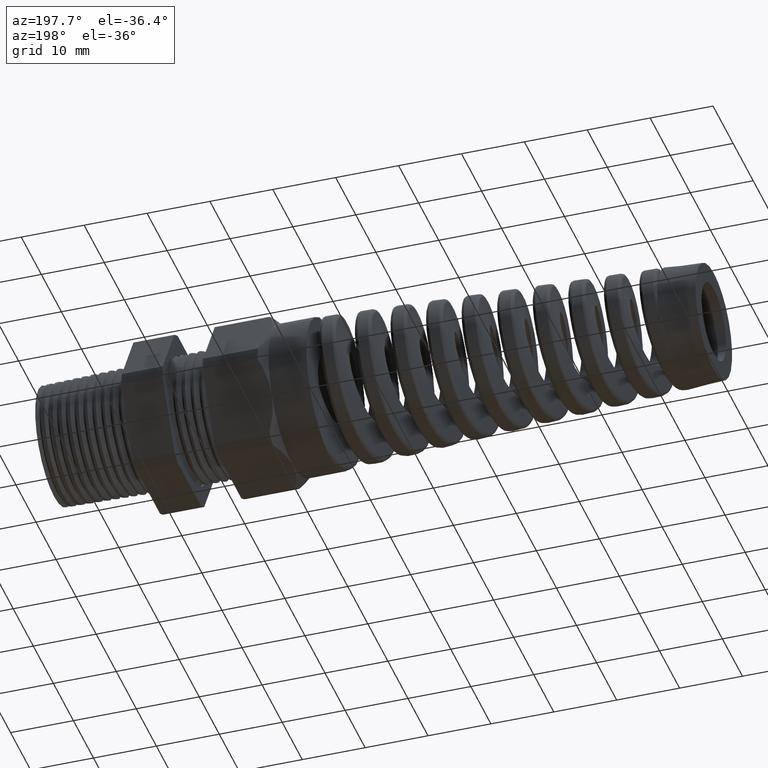
[diagram: clean part render]
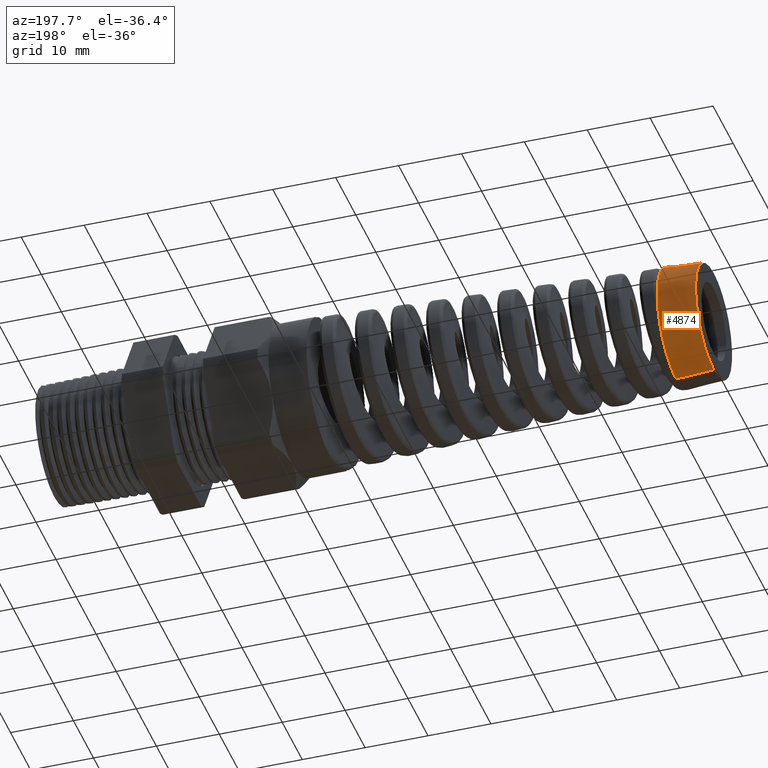
[diagram: same view with one face highlighted and labeled with its STEP entity id]
A machine part, auxiliary view. The second image highlights one B-rep face of the part: STEP entity #4874.
In plain terms, the highlighted conical surface has half-angle 3.5 deg.
Its self-contained STEP definition (entity closure, byte-faithful):
#111 = CARTESIAN_POINT ( 'NONE',  ( -3.613780000000000200, 0.0000000000000000000, 0.3720344495207377800 ) ) ;
#117 = DIRECTION ( 'NONE',  ( 0.9981347984218669200, -7.476289853398327700E-018, -0.06104853953485701200 ) ) ;
#118 = VECTOR ( 'NONE', #117, 39.37007874015748900 ) ;
#119 = CARTESIAN_POINT ( 'NONE',  ( -3.613780000000000200, -4.556107977781191300E-017, -0.3720344495207377800 ) ) ;
#120 = LINE ( 'NONE', #119, #118 ) ;
#121 = CARTESIAN_POINT ( 'NONE',  ( -3.850000472440945600, 0.0000000000000000000, 0.3575865864930643000 ) ) ;
#497 = DIRECTION ( 'NONE',  ( 0.9981347984218669200, 0.0000000000000000000, 0.06104853953485701200 ) ) ;
#498 = VECTOR ( 'NONE', #497, 39.37007874015748900 ) ;
#499 = CARTESIAN_POINT ( 'NONE',  ( -3.613780000000000200, 0.0000000000000000000, 0.3720344495207377800 ) ) ;
#500 = LINE ( 'NONE', #499, #498 ) ;
#2111 = CARTESIAN_POINT ( 'NONE',  ( -3.613780000000000200, 0.0000000000000000000, 0.0000000000000000000 ) ) ;
#2156 = DIRECTION ( 'NONE',  ( 0.0000000000000000000, 0.0000000000000000000, 1.000000000000000000 ) ) ;
#2157 = DIRECTION ( 'NONE',  ( -1.000000000000000000, 0.0000000000000000000, 0.0000000000000000000 ) ) ;
#2158 = AXIS2_PLACEMENT_3D ( 'NONE', #2111, #2157, #2156 ) ;
#2159 = CIRCLE ( 'NONE', #2158, 0.3720344495207377800 ) ;
#4874 = ADVANCED_FACE ( 'NONE', ( #16710 ), #16770, .T. ) ;
#4885 = EDGE_CURVE ( 'NONE', #5179, #5252, #16748, .T. ) ;
#4930 = EDGE_LOOP ( 'NONE', ( #4931, #4932, #4933, #4934, #4936 ) ) ;
#4931 = ORIENTED_EDGE ( 'NONE', *, *, #5181, .F. ) ;
#4932 = ORIENTED_EDGE ( 'NONE', *, *, #4885, .F. ) ;
#4933 = ORIENTED_EDGE ( 'NONE', *, *, #5197, .T. ) ;
#4934 = ORIENTED_EDGE ( 'NONE', *, *, #4935, .T. ) ;
#4935 = EDGE_CURVE ( 'NONE', #5185, #10887, #2159, .T. ) ;
#4936 = ORIENTED_EDGE ( 'NONE', *, *, #10900, .F. ) ;
#5179 = VERTEX_POINT ( 'NONE', #121 ) ;
#5181 = EDGE_CURVE ( 'NONE', #5252, #10898, #120, .T. ) ;
#5185 = VERTEX_POINT ( 'NONE', #111 ) ;
#5197 = EDGE_CURVE ( 'NONE', #5179, #5185, #500, .T. ) ;
#5252 = VERTEX_POINT ( 'NONE', #7784 ) ;
#7784 = CARTESIAN_POINT ( 'NONE',  ( -3.850000472440945600, -4.467640331724391700E-017, -0.3575865864930643000 ) ) ;
#10887 = VERTEX_POINT ( 'NONE', #12944 ) ;
#10898 = VERTEX_POINT ( 'NONE', #12956 ) ;
#10900 = EDGE_CURVE ( 'NONE', #10898, #10887, #12953, .T. ) ;
#12157 = DIRECTION ( 'NONE',  ( 1.000000000000000000, 0.0000000000000000000, 0.0000000000000000000 ) ) ;
#12158 = CARTESIAN_POINT ( 'NONE',  ( -3.613780000000000200, 0.0000000000000000000, 0.0000000000000000000 ) ) ;
#12676 = DIRECTION ( 'NONE',  ( 0.0000000000000000000, 0.0000000000000000000, -1.000000000000000000 ) ) ;
#12944 = CARTESIAN_POINT ( 'NONE',  ( -3.613780000000000200, 0.3177439307968733000, -0.1935159581842034700 ) ) ;
#12952 = AXIS2_PLACEMENT_3D ( 'NONE', #12158, #12157, #12676 ) ;
#12953 = CIRCLE ( 'NONE', #12952, 0.3720344495207380500 ) ;
#12956 = CARTESIAN_POINT ( 'NONE',  ( -3.613780000000000200, -4.556107977781191300E-017, -0.3720344495207377800 ) ) ;
#16710 = FACE_OUTER_BOUND ( 'NONE', #4930, .T. ) ;
#16744 = DIRECTION ( 'NONE',  ( 0.0000000000000000000, 0.0000000000000000000, 1.000000000000000000 ) ) ;
#16745 = DIRECTION ( 'NONE',  ( -1.000000000000000000, 0.0000000000000000000, 0.0000000000000000000 ) ) ;
#16746 = CARTESIAN_POINT ( 'NONE',  ( -3.850000472440945600, 0.0000000000000000000, 0.0000000000000000000 ) ) ;
#16747 = AXIS2_PLACEMENT_3D ( 'NONE', #16746, #16745, #16744 ) ;
#16748 = CIRCLE ( 'NONE', #16747, 0.3575865864930643000 ) ;
#16766 = DIRECTION ( 'NONE',  ( 0.0000000000000000000, 0.0000000000000000000, 1.000000000000000000 ) ) ;
#16767 = DIRECTION ( 'NONE',  ( 1.000000000000000000, 0.0000000000000000000, 0.0000000000000000000 ) ) ;
#16768 = CARTESIAN_POINT ( 'NONE',  ( -3.613780000000000200, 0.0000000000000000000, 0.0000000000000000000 ) ) ;
#16769 = AXIS2_PLACEMENT_3D ( 'NONE', #16768, #16767, #16766 ) ;
#16770 = CONICAL_SURFACE ( 'NONE', #16769, 0.3720344495207377800, 0.06108652381980166800 ) ;